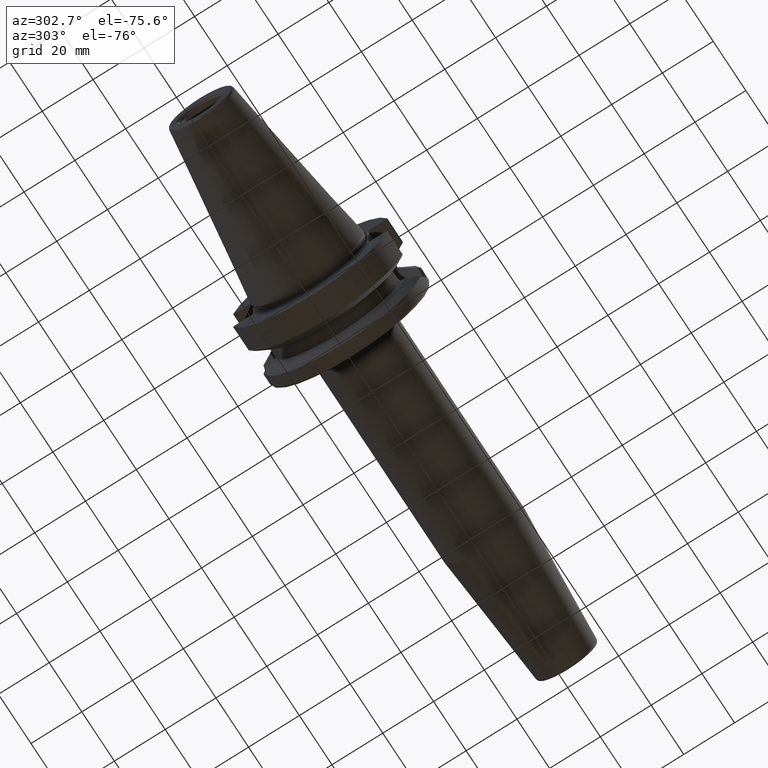
[diagram: clean part render]
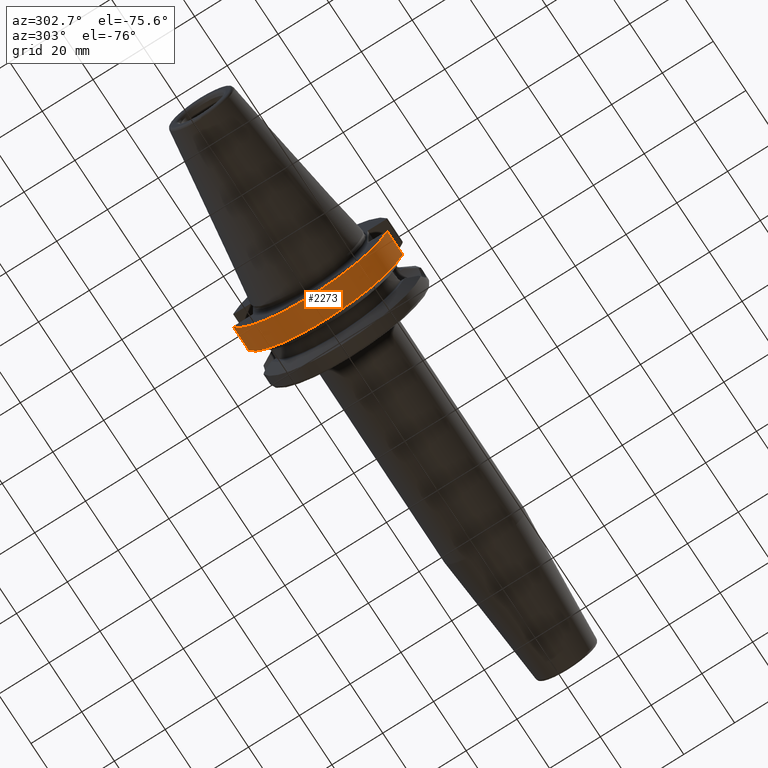
[diagram: same view with one face highlighted and labeled with its STEP entity id]
A machine part, auxiliary view. The second image highlights one B-rep face of the part: STEP entity #2273.
In plain terms, the highlighted cylindrical surface (partial cylindrical patch) has radius 31.5 mm, axis along (-1, 0, 0).
Its self-contained STEP definition (entity closure, byte-faithful):
#723=DIRECTION('',(-1.E0,0.E0,0.E0));
#724=VECTOR('',#723,9.5690365E0);
#725=CARTESIAN_POINT('',(1.15690365E1,-3.033554803451E1,-8.485548034509E0));
#726=LINE('',#725,#724);
#727=DIRECTION('',(-1.E0,0.E0,0.E0));
#728=VECTOR('',#727,9.5690365E0);
#729=CARTESIAN_POINT('',(1.15690365E1,3.033554803451E1,-8.485548034509E0));
#730=LINE('',#729,#728);
#731=CARTESIAN_POINT('',(2.E0,0.E0,0.E0));
#732=DIRECTION('',(-1.E0,0.E0,0.E0));
#733=DIRECTION('',(0.E0,9.630332709368E-1,-2.693824772860E-1));
#734=AXIS2_PLACEMENT_3D('',#731,#732,#733);
#839=CARTESIAN_POINT('',(1.15690365E1,3.033554803451E1,-8.485548034509E0));
#841=CARTESIAN_POINT('',(1.15690365E1,0.E0,0.E0));
#842=DIRECTION('',(-1.E0,0.E0,0.E0));
#843=DIRECTION('',(0.E0,9.630332709368E-1,-2.693824772860E-1));
#844=AXIS2_PLACEMENT_3D('',#841,#842,#843);
#1143=VERTEX_POINT('',#839);
#1156=CARTESIAN_POINT('',(2.E0,3.033554803451E1,-8.485548034509E0));
#1157=VERTEX_POINT('',#1156);
#1162=CARTESIAN_POINT('',(1.15690365E1,-3.033554803451E1,-8.485548034509E0));
#1163=CARTESIAN_POINT('',(2.E0,-3.033554803451E1,-8.485548034509E0));
#1164=VERTEX_POINT('',#1162);
#1165=VERTEX_POINT('',#1163);
#2258=CARTESIAN_POINT('',(0.E0,0.E0,0.E0));
#2259=DIRECTION('',(-1.E0,0.E0,0.E0));
#2260=DIRECTION('',(0.E0,0.E0,-1.E0));
#2261=AXIS2_PLACEMENT_3D('',#2258,#2259,#2260);
#2262=CYLINDRICAL_SURFACE('',#2261,3.15E1);
#2264=ORIENTED_EDGE('',*,*,#2263,.F.);
#2266=ORIENTED_EDGE('',*,*,#2265,.F.);
#2268=ORIENTED_EDGE('',*,*,#2267,.T.);
#2270=ORIENTED_EDGE('',*,*,#2269,.T.);
#2271=EDGE_LOOP('',(#2264,#2266,#2268,#2270));
#2272=FACE_OUTER_BOUND('',#2271,.F.);
#2273=ADVANCED_FACE('',(#2272),#2262,.T.);
#735=CIRCLE('',#734,3.15E1);
#845=CIRCLE('',#844,3.15E1);
#2263=EDGE_CURVE('',#1164,#1165,#726,.T.);
#2265=EDGE_CURVE('',#1143,#1164,#845,.T.);
#2267=EDGE_CURVE('',#1143,#1157,#730,.T.);
#2269=EDGE_CURVE('',#1157,#1165,#735,.T.);